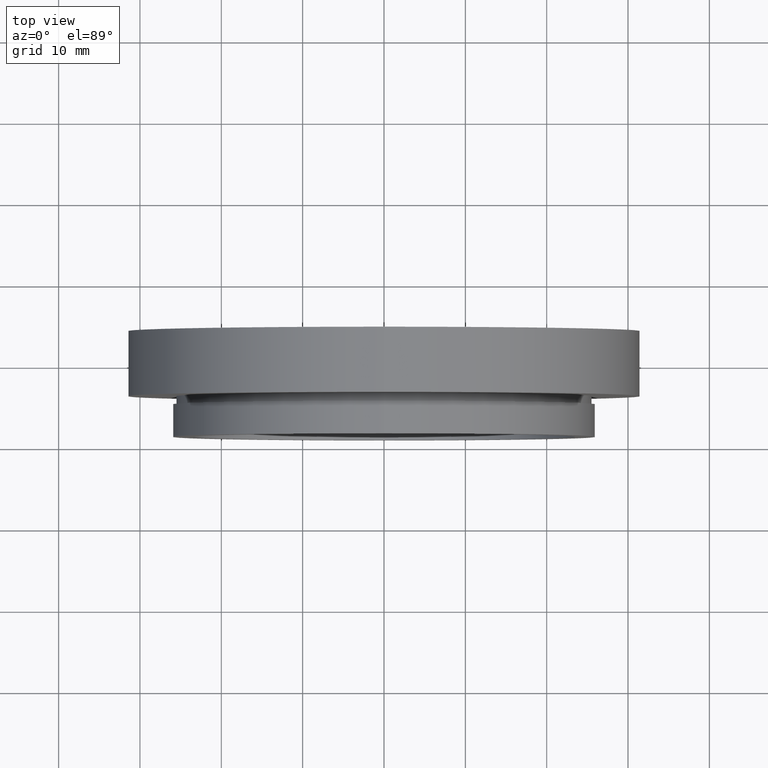
[diagram: clean part render]
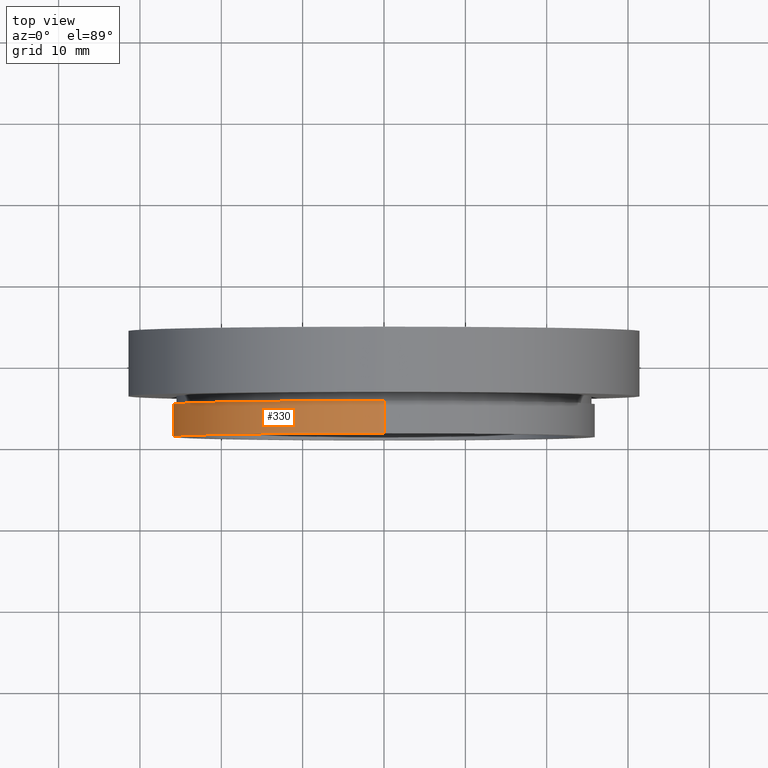
[diagram: same view with one face highlighted and labeled with its STEP entity id]
A machine part, top view. The second image highlights one B-rep face of the part: STEP entity #330.
In plain terms, the highlighted cylindrical surface (partial cylindrical patch) has radius 26 mm, axis along (-0, -1, -0).
Its self-contained STEP definition (entity closure, byte-faithful):
#33 = DIRECTION ( 'NONE',  ( -0.0000000000000000000, -1.000000000000000000, -0.0000000000000000000 ) ) ;
#201 = LINE ( 'NONE', #486, #586 ) ;
#239 = VERTEX_POINT ( 'NONE', #585 ) ;
#244 = CARTESIAN_POINT ( 'NONE',  ( 0.0000000000000000000, -5.003278688524595500, -26.00000000000000000 ) ) ;
#247 = DIRECTION ( 'NONE',  ( 0.0000000000000000000, 0.0000000000000000000, -1.000000000000000000 ) ) ;
#310 = EDGE_LOOP ( 'NONE', ( #419, #1068, #797, #611 ) ) ;
#330 = ADVANCED_FACE ( 'NONE', ( #976 ), #380, .T. ) ;
#358 = CARTESIAN_POINT ( 'NONE',  ( 0.0000000000000000000, -9.003278688524595500, 0.0000000000000000000 ) ) ;
#379 = LINE ( 'NONE', #865, #890 ) ;
#380 = CYLINDRICAL_SURFACE ( 'NONE', #1047, 26.00000000000000000 ) ;
#384 = CARTESIAN_POINT ( 'NONE',  ( 0.0000000000000000000, -5.003278688524595500, 0.0000000000000000000 ) ) ;
#395 = CIRCLE ( 'NONE', #650, 26.00000000000000000 ) ;
#396 = DIRECTION ( 'NONE',  ( -0.0000000000000000000, -1.000000000000000000, -0.0000000000000000000 ) ) ;
#419 = ORIENTED_EDGE ( 'NONE', *, *, #1016, .F. ) ;
#453 = EDGE_CURVE ( 'NONE', #582, #1124, #1159, .T. ) ;
#481 = DIRECTION ( 'NONE',  ( 0.0000000000000000000, 0.0000000000000000000, -1.000000000000000000 ) ) ;
#486 = CARTESIAN_POINT ( 'NONE',  ( 3.184081677783118200E-015, 0.0000000000000000000, 26.00000000000000000 ) ) ;
#582 = VERTEX_POINT ( 'NONE', #836 ) ;
#585 = CARTESIAN_POINT ( 'NONE',  ( 3.184081677783118200E-015, -5.003278688524595500, 26.00000000000000000 ) ) ;
#586 = VECTOR ( 'NONE', #33, 1000.000000000000000 ) ;
#611 = ORIENTED_EDGE ( 'NONE', *, *, #453, .F. ) ;
#650 = AXIS2_PLACEMENT_3D ( 'NONE', #384, #1045, #481 ) ;
#751 = EDGE_CURVE ( 'NONE', #854, #1124, #379, .T. ) ;
#762 = CARTESIAN_POINT ( 'NONE',  ( 0.0000000000000000000, -9.003278688524595500, -26.00000000000000000 ) ) ;
#782 = DIRECTION ( 'NONE',  ( 0.0000000000000000000, 0.0000000000000000000, -1.000000000000000000 ) ) ;
#797 = ORIENTED_EDGE ( 'NONE', *, *, #751, .T. ) ;
#812 = AXIS2_PLACEMENT_3D ( 'NONE', #358, #899, #247 ) ;
#836 = CARTESIAN_POINT ( 'NONE',  ( 3.184081677783118200E-015, -9.003278688524595500, 26.00000000000000000 ) ) ;
#854 = VERTEX_POINT ( 'NONE', #244 ) ;
#865 = CARTESIAN_POINT ( 'NONE',  ( 0.0000000000000000000, 0.0000000000000000000, -26.00000000000000000 ) ) ;
#890 = VECTOR ( 'NONE', #1065, 1000.000000000000000 ) ;
#899 = DIRECTION ( 'NONE',  ( -0.0000000000000000000, -1.000000000000000000, -0.0000000000000000000 ) ) ;
#976 = FACE_OUTER_BOUND ( 'NONE', #310, .T. ) ;
#993 = EDGE_CURVE ( 'NONE', #239, #854, #395, .T. ) ;
#1016 = EDGE_CURVE ( 'NONE', #239, #582, #201, .T. ) ;
#1045 = DIRECTION ( 'NONE',  ( -0.0000000000000000000, -1.000000000000000000, -0.0000000000000000000 ) ) ;
#1047 = AXIS2_PLACEMENT_3D ( 'NONE', #1064, #396, #782 ) ;
#1064 = CARTESIAN_POINT ( 'NONE',  ( 0.0000000000000000000, 0.0000000000000000000, 0.0000000000000000000 ) ) ;
#1065 = DIRECTION ( 'NONE',  ( -0.0000000000000000000, -1.000000000000000000, -0.0000000000000000000 ) ) ;
#1068 = ORIENTED_EDGE ( 'NONE', *, *, #993, .T. ) ;
#1124 = VERTEX_POINT ( 'NONE', #762 ) ;
#1159 = CIRCLE ( 'NONE', #812, 26.00000000000000000 ) ;